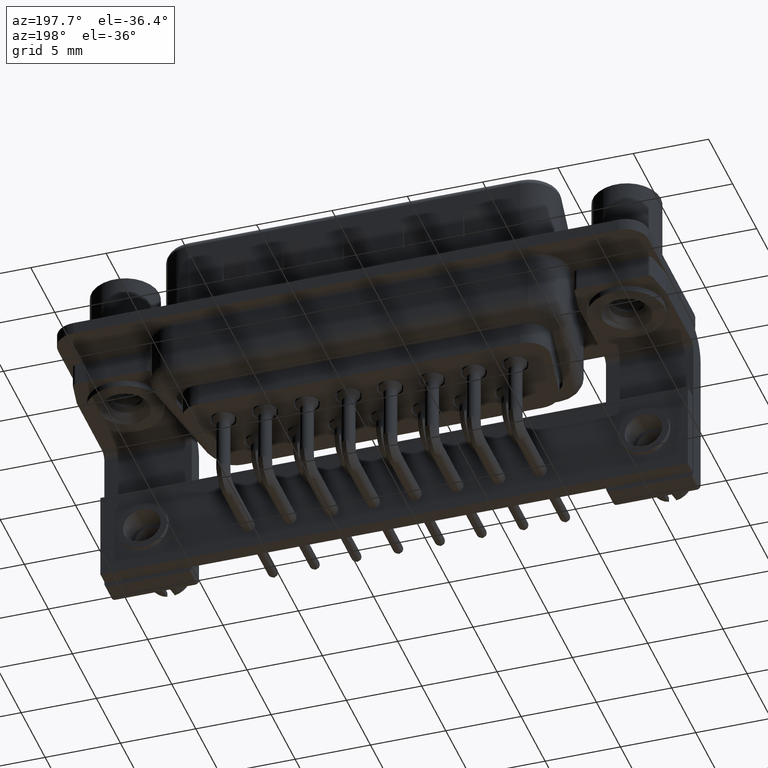
[diagram: clean part render]
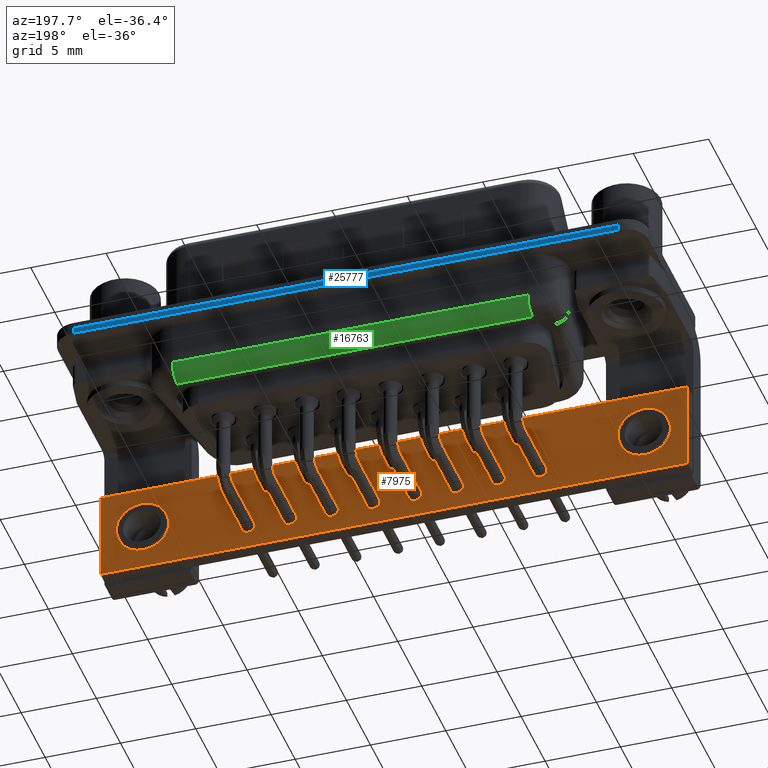
[diagram: same view with three faces highlighted in distinct colors, each labeled with its STEP entity id]
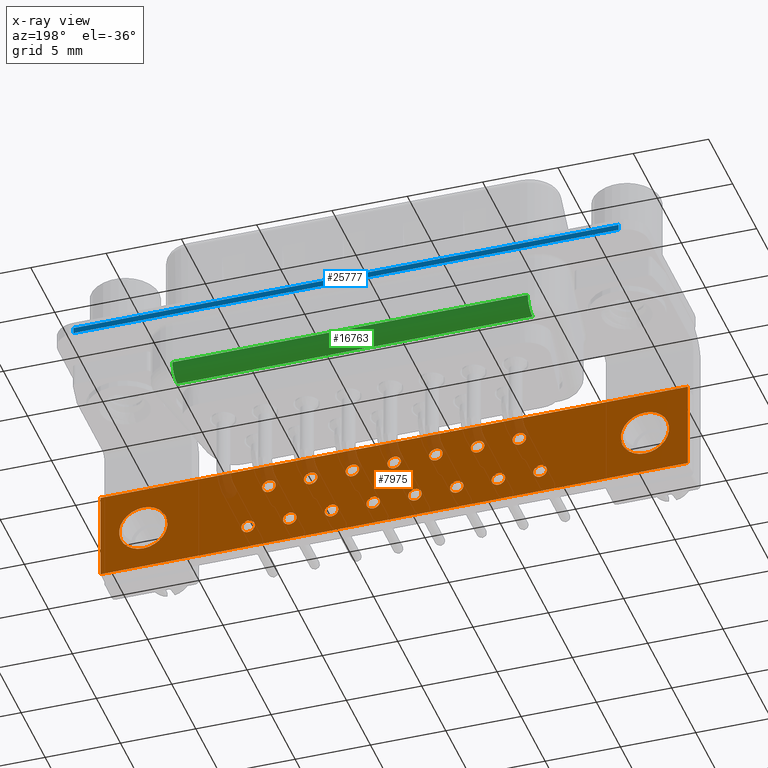
[diagram: x-ray of the same camera — body ghosted, the three highlighted faces saturated]
A machine part, auxiliary view with three faces highlighted in distinct colors.
The next image is the same camera in x-ray (body ghosted, the three faces saturated) — at least one of them is partly hidden behind the body in this view.
Their STEP definitions:

[orange] entity #7975 — the highlighted planar face has unit normal (0, 1, 0).
#178 = EDGE_LOOP ( 'NONE', ( #9738, #24924 ) ) ;
#271 = DIRECTION ( 'NONE',  ( 0.0000000000000000000, 1.000000000000000000, 0.0000000000000000000 ) ) ;
#274 = FACE_BOUND ( 'NONE', #26998, .T. ) ;
#504 = EDGE_CURVE ( 'NONE', #26231, #23463, #23858, .T. ) ;
#674 = AXIS2_PLACEMENT_3D ( 'NONE', #23411, #11066, #25603 ) ;
#748 = ORIENTED_EDGE ( 'NONE', *, *, #24466, .F. ) ;
#814 = CARTESIAN_POINT ( 'NONE',  ( 23.57499999999999900, -3.750000000000000000, -10.88999999999999900 ) ) ;
#839 = EDGE_CURVE ( 'NONE', #7379, #7822, #10579, .T. ) ;
#880 = EDGE_CURVE ( 'NONE', #11857, #13253, #4310, .T. ) ;
#967 = CARTESIAN_POINT ( 'NONE',  ( -2.849999999999998300, -3.750000000000000000, -6.009999999999998000 ) ) ;
#970 = FACE_BOUND ( 'NONE', #24442, .T. ) ;
#1104 = DIRECTION ( 'NONE',  ( 0.0000000000000000000, 0.0000000000000000000, 1.000000000000000000 ) ) ;
#1266 = CARTESIAN_POINT ( 'NONE',  ( 6.954999999999997400, -3.750000000000000000, -10.89000000000000100 ) ) ;
#1270 = EDGE_CURVE ( 'NONE', #18652, #22926, #19556, .T. ) ;
#1272 = AXIS2_PLACEMENT_3D ( 'NONE', #6821, #21220, #8908 ) ;
#1612 = VERTEX_POINT ( 'NONE', #21558 ) ;
#1627 = ORIENTED_EDGE ( 'NONE', *, *, #24543, .F. ) ;
#1646 = CARTESIAN_POINT ( 'NONE',  ( 20.80499999999999600, -3.750000000000000000, -10.44000000000000000 ) ) ;
#1672 = FACE_BOUND ( 'NONE', #20735, .T. ) ;
#1793 = ORIENTED_EDGE ( 'NONE', *, *, #839, .F. ) ;
#1857 = ORIENTED_EDGE ( 'NONE', *, *, #18860, .F. ) ;
#1912 = VERTEX_POINT ( 'NONE', #18668 ) ;
#1935 = CARTESIAN_POINT ( 'NONE',  ( 18.03499999999999700, -3.750000000000000000, -9.990000000000000200 ) ) ;
#1984 = DIRECTION ( 'NONE',  ( 0.0000000000000000000, 0.0000000000000000000, 1.000000000000000000 ) ) ;
#2025 = CARTESIAN_POINT ( 'NONE',  ( 22.18999999999999400, -3.750000000000000000, -7.599999999999999600 ) ) ;
#2490 = ORIENTED_EDGE ( 'NONE', *, *, #13821, .F. ) ;
#2599 = CARTESIAN_POINT ( 'NONE',  ( 15.26499999999999700, -3.750000000000000000, -9.990000000000003800 ) ) ;
#2651 = CARTESIAN_POINT ( 'NONE',  ( 9.724999999999997900, -3.750000000000000000, -9.989999999999998400 ) ) ;
#2847 = AXIS2_PLACEMENT_3D ( 'NONE', #21670, #9340, #23811 ) ;
#3166 = VECTOR ( 'NONE', #24045, 1000.000000000000000 ) ;
#3174 = EDGE_CURVE ( 'NONE', #7688, #4553, #6195, .T. ) ;
#3259 = CARTESIAN_POINT ( 'NONE',  ( 11.10999999999999600, -3.750000000000000000, -7.599999999999999600 ) ) ;
#3295 = DIRECTION ( 'NONE',  ( 1.000000000000000000, -0.0000000000000000000, -1.334402673828313300E-016 ) ) ;
#3342 = EDGE_LOOP ( 'NONE', ( #22434, #12695, #12681, #16418 ) ) ;
#3350 = EDGE_CURVE ( 'NONE', #11941, #23934, #8481, .T. ) ;
#3422 = CARTESIAN_POINT ( 'NONE',  ( 11.10999999999999600, -3.750000000000000000, -8.050000000000000700 ) ) ;
#3518 = AXIS2_PLACEMENT_3D ( 'NONE', #19420, #7108, #21512 ) ;
#3585 = EDGE_CURVE ( 'NONE', #4453, #23754, #19719, .T. ) ;
#3647 = VECTOR ( 'NONE', #3295, 1000.000000000000000 ) ;
#3721 = PLANE ( 'NONE',  #23971 ) ;
#3727 = CARTESIAN_POINT ( 'NONE',  ( 36.14999999999999100, -3.750000000000000000, -6.010000000000003300 ) ) ;
#3729 = CIRCLE ( 'NONE', #2847, 0.4499999999999999000 ) ;
#3746 = EDGE_CURVE ( 'NONE', #13253, #1612, #15210, .T. ) ;
#3772 = DIRECTION ( 'NONE',  ( 0.0000000000000000000, 0.0000000000000000000, 1.000000000000000000 ) ) ;
#3856 = AXIS2_PLACEMENT_3D ( 'NONE', #6024, #20458, #8153 ) ;
#3933 = CIRCLE ( 'NONE', #18003, 0.4500000000000007300 ) ;
#3937 = DIRECTION ( 'NONE',  ( -0.0000000000000000000, -0.0000000000000000000, 1.000000000000000000 ) ) ;
#3996 = AXIS2_PLACEMENT_3D ( 'NONE', #21055, #17081, #21845 ) ;
#4144 = DIRECTION ( 'NONE',  ( 0.0000000000000000000, 0.0000000000000000000, 1.000000000000000000 ) ) ;
#4152 = VECTOR ( 'NONE', #14774, 1000.000000000000000 ) ;
#4157 = ORIENTED_EDGE ( 'NONE', *, *, #13046, .F. ) ;
#4205 = EDGE_CURVE ( 'NONE', #6959, #1912, #12971, .T. ) ;
#4269 = ORIENTED_EDGE ( 'NONE', *, *, #8256, .F. ) ;
#4310 = LINE ( 'NONE', #3727, #3647 ) ;
#4323 = CIRCLE ( 'NONE', #3518, 0.4499999999999955100 ) ;
#4453 = VERTEX_POINT ( 'NONE', #1935 ) ;
#4479 = VERTEX_POINT ( 'NONE', #19405 ) ;
#4530 = CARTESIAN_POINT ( 'NONE',  ( 26.34499999999999200, -3.750000000000000000, -10.89000000000000200 ) ) ;
#4553 = VERTEX_POINT ( 'NONE', #24674 ) ;
#4637 = DIRECTION ( 'NONE',  ( 0.0000000000000000000, 1.000000000000000000, 0.0000000000000000000 ) ) ;
#4695 = DIRECTION ( 'NONE',  ( 0.0000000000000000000, 0.0000000000000000000, 1.000000000000000000 ) ) ;
#4730 = EDGE_LOOP ( 'NONE', ( #17868, #6319 ) ) ;
#4794 = DIRECTION ( 'NONE',  ( 0.0000000000000000000, 1.000000000000000000, 0.0000000000000000000 ) ) ;
#4834 = CARTESIAN_POINT ( 'NONE',  ( 18.03499999999999700, -3.750000000000000000, -10.44000000000000000 ) ) ;
#4875 = AXIS2_PLACEMENT_3D ( 'NONE', #22052, #9698, #24191 ) ;
#4999 = CARTESIAN_POINT ( 'NONE',  ( 8.339999999999996300, -3.750000000000000000, -7.599999999999999600 ) ) ;
#5020 = EDGE_CURVE ( 'NONE', #4553, #7688, #16743, .T. ) ;
#5310 = CIRCLE ( 'NONE', #21395, 0.4499999999999981200 ) ;
#5385 = DIRECTION ( 'NONE',  ( 0.0000000000000000000, 0.0000000000000000000, 1.000000000000000000 ) ) ;
#5508 = ORIENTED_EDGE ( 'NONE', *, *, #10279, .F. ) ;
#5578 = VERTEX_POINT ( 'NONE', #17425 ) ;
#5629 = CARTESIAN_POINT ( 'NONE',  ( 23.57499999999999900, -3.750000000000000000, -10.44000000000000000 ) ) ;
#5710 = EDGE_CURVE ( 'NONE', #10811, #11857, #19976, .T. ) ;
#5873 = CARTESIAN_POINT ( 'NONE',  ( 0.0000000000000000000, -3.750000000000000000, 0.0000000000000000000 ) ) ;
#5981 = FACE_BOUND ( 'NONE', #16492, .T. ) ;
#6024 = CARTESIAN_POINT ( 'NONE',  ( 20.80499999999999600, -3.750000000000000000, -10.44000000000000000 ) ) ;
#6148 = DIRECTION ( 'NONE',  ( 0.0000000000000000000, 1.000000000000000000, 0.0000000000000000000 ) ) ;
#6160 = EDGE_LOOP ( 'NONE', ( #9667, #1627 ) ) ;
#6195 = CIRCLE ( 'NONE', #3996, 0.4499999999999981200 ) ;
#6236 = ORIENTED_EDGE ( 'NONE', *, *, #17805, .F. ) ;
#6247 = EDGE_CURVE ( 'NONE', #4479, #21849, #13865, .T. ) ;
#6319 = ORIENTED_EDGE ( 'NONE', *, *, #20411, .F. ) ;
#6337 = EDGE_CURVE ( 'NONE', #13427, #17304, #6407, .T. ) ;
#6407 = CIRCLE ( 'NONE', #7618, 0.4500000000000025100 ) ;
#6496 = EDGE_CURVE ( 'NONE', #18565, #8071, #3729, .T. ) ;
#6544 = DIRECTION ( 'NONE',  ( 0.0000000000000000000, 1.000000000000000000, 0.0000000000000000000 ) ) ;
#6606 = CIRCLE ( 'NONE', #1272, 1.600000000000000800 ) ;
#6653 = FACE_OUTER_BOUND ( 'NONE', #3342, .T. ) ;
#6659 = AXIS2_PLACEMENT_3D ( 'NONE', #19720, #7389, #21820 ) ;
#6764 = AXIS2_PLACEMENT_3D ( 'NONE', #26711, #26430, #25091 ) ;
#6798 = CARTESIAN_POINT ( 'NONE',  ( 0.0000000000000000000, -3.750000000000000000, -10.60999999999999400 ) ) ;
#6821 = CARTESIAN_POINT ( 'NONE',  ( 0.0000000000000000000, -3.750000000000000000, -9.009999999999994500 ) ) ;
#6931 = CARTESIAN_POINT ( 'NONE',  ( 12.49499999999999700, -3.750000000000000000, -10.89000000000000100 ) ) ;
#6948 = ORIENTED_EDGE ( 'NONE', *, *, #14273, .F. ) ;
#6959 = VERTEX_POINT ( 'NONE', #10686 ) ;
#7061 = VERTEX_POINT ( 'NONE', #2599 ) ;
#7108 = DIRECTION ( 'NONE',  ( 0.0000000000000000000, 1.000000000000000000, 0.0000000000000000000 ) ) ;
#7119 = DIRECTION ( 'NONE',  ( 0.0000000000000000000, 1.000000000000000000, 0.0000000000000000000 ) ) ;
#7127 = DIRECTION ( 'NONE',  ( 0.0000000000000000000, 0.0000000000000000000, 1.000000000000000000 ) ) ;
#7242 = CARTESIAN_POINT ( 'NONE',  ( 19.41999999999999500, -3.750000000000000000, -7.150000000000002100 ) ) ;
#7379 = VERTEX_POINT ( 'NONE', #24625 ) ;
#7389 = DIRECTION ( 'NONE',  ( 0.0000000000000000000, 1.000000000000000000, 0.0000000000000000000 ) ) ;
#7618 = AXIS2_PLACEMENT_3D ( 'NONE', #8621, #23068, #10720 ) ;
#7688 = VERTEX_POINT ( 'NONE', #25561 ) ;
#7751 = DIRECTION ( 'NONE',  ( 0.0000000000000000000, 0.0000000000000000000, 1.000000000000000000 ) ) ;
#7822 = VERTEX_POINT ( 'NONE', #11456 ) ;
#7975 = ADVANCED_FACE ( 'NONE', ( #18242, #23834, #12827, #18886, #1672, #23144, #17596, #12187, #6653, #970, #22495, #16959, #11538, #5981, #274, #21823, #16310, #10893 ), #3721, .T. ) ;
#8059 = EDGE_CURVE ( 'NONE', #25848, #24103, #9583, .T. ) ;
#8071 = VERTEX_POINT ( 'NONE', #24784 ) ;
#8091 = EDGE_LOOP ( 'NONE', ( #748, #26207 ) ) ;
#8153 = DIRECTION ( 'NONE',  ( 0.0000000000000000000, 0.0000000000000000000, 1.000000000000000000 ) ) ;
#8176 = ORIENTED_EDGE ( 'NONE', *, *, #25348, .F. ) ;
#8185 = AXIS2_PLACEMENT_3D ( 'NONE', #11122, #25672, #13169 ) ;
#8256 = EDGE_CURVE ( 'NONE', #23754, #4453, #22152, .T. ) ;
#8443 = EDGE_LOOP ( 'NONE', ( #17196, #6948 ) ) ;
#8481 = CIRCLE ( 'NONE', #19261, 0.4500000000000007300 ) ;
#8620 = AXIS2_PLACEMENT_3D ( 'NONE', #3259, #17759, #5385 ) ;
#8621 = CARTESIAN_POINT ( 'NONE',  ( 26.34499999999999200, -3.750000000000000000, -10.44000000000000000 ) ) ;
#8725 = ORIENTED_EDGE ( 'NONE', *, *, #504, .F. ) ;
#8846 = CIRCLE ( 'NONE', #24390, 0.4499999999999972900 ) ;
#8886 = EDGE_CURVE ( 'NONE', #17304, #13427, #13412, .T. ) ;
#8908 = DIRECTION ( 'NONE',  ( 0.0000000000000000000, 0.0000000000000000000, 1.000000000000000000 ) ) ;
#8977 = AXIS2_PLACEMENT_3D ( 'NONE', #4999, #19436, #7127 ) ;
#9063 = VECTOR ( 'NONE', #3937, 1000.000000000000000 ) ;
#9170 = CIRCLE ( 'NONE', #4875, 0.4500000000000007300 ) ;
#9283 = CARTESIAN_POINT ( 'NONE',  ( 8.339999999999996300, -3.750000000000000000, -8.050000000000000700 ) ) ;
#9340 = DIRECTION ( 'NONE',  ( 0.0000000000000000000, 1.000000000000000000, 0.0000000000000000000 ) ) ;
#9380 = DIRECTION ( 'NONE',  ( 0.0000000000000000000, 1.000000000000000000, 0.0000000000000000000 ) ) ;
#9583 = CIRCLE ( 'NONE', #25428, 0.4500000000000016200 ) ;
#9599 = ORIENTED_EDGE ( 'NONE', *, *, #4205, .F. ) ;
#9667 = ORIENTED_EDGE ( 'NONE', *, *, #21726, .F. ) ;
#9698 = DIRECTION ( 'NONE',  ( 0.0000000000000000000, 1.000000000000000000, 0.0000000000000000000 ) ) ;
#9715 = AXIS2_PLACEMENT_3D ( 'NONE', #15358, #12567, #26158 ) ;
#9738 = ORIENTED_EDGE ( 'NONE', *, *, #9847, .F. ) ;
#9744 = VERTEX_POINT ( 'NONE', #7242 ) ;
#9847 = EDGE_CURVE ( 'NONE', #22926, #18652, #9170, .T. ) ;
#10171 = CARTESIAN_POINT ( 'NONE',  ( 20.80499999999999600, -3.750000000000000000, -10.88999999999999900 ) ) ;
#10247 = VERTEX_POINT ( 'NONE', #19092 ) ;
#10279 = EDGE_CURVE ( 'NONE', #23934, #11941, #26923, .T. ) ;
#10286 = CARTESIAN_POINT ( 'NONE',  ( -2.849999999999998300, -3.750000000000000000, -6.009999999999998000 ) ) ;
#10449 = EDGE_CURVE ( 'NONE', #7822, #7379, #14474, .T. ) ;
#10546 = CARTESIAN_POINT ( 'NONE',  ( 1.959434878635766000E-016, -3.750000000000000000, -7.409999999999993000 ) ) ;
#10579 = CIRCLE ( 'NONE', #16063, 1.600000000000005000 ) ;
#10686 = CARTESIAN_POINT ( 'NONE',  ( 16.64999999999999900, -3.750000000000000000, -8.049999999999998900 ) ) ;
#10720 = DIRECTION ( 'NONE',  ( 0.0000000000000000000, 0.0000000000000000000, 1.000000000000000000 ) ) ;
#10811 = VERTEX_POINT ( 'NONE', #27234 ) ;
#10893 = FACE_BOUND ( 'NONE', #8443, .T. ) ;
#10937 = CARTESIAN_POINT ( 'NONE',  ( 19.41999999999999500, -3.750000000000000000, -7.599999999999999600 ) ) ;
#11063 = CARTESIAN_POINT ( 'NONE',  ( 6.954999999999997400, -3.750000000000000000, -10.44000000000000000 ) ) ;
#11066 = DIRECTION ( 'NONE',  ( 0.0000000000000000000, 1.000000000000000000, 0.0000000000000000000 ) ) ;
#11122 = CARTESIAN_POINT ( 'NONE',  ( 15.26499999999999700, -3.750000000000000000, -10.44000000000000000 ) ) ;
#11287 = VERTEX_POINT ( 'NONE', #10171 ) ;
#11387 = ORIENTED_EDGE ( 'NONE', *, *, #17566, .F. ) ;
#11449 = CARTESIAN_POINT ( 'NONE',  ( 9.724999999999997900, -3.750000000000000000, -10.44000000000000000 ) ) ;
#11450 = AXIS2_PLACEMENT_3D ( 'NONE', #21708, #9380, #23851 ) ;
#11456 = CARTESIAN_POINT ( 'NONE',  ( 33.29999999999999700, -3.750000000000000000, -7.409999999999995700 ) ) ;
#11491 = DIRECTION ( 'NONE',  ( 0.0000000000000000000, 1.000000000000000000, 0.0000000000000000000 ) ) ;
#11519 = DIRECTION ( 'NONE',  ( 0.0000000000000000000, 0.0000000000000000000, 1.000000000000000000 ) ) ;
#11538 = FACE_BOUND ( 'NONE', #178, .T. ) ;
#11607 = AXIS2_PLACEMENT_3D ( 'NONE', #5629, #20073, #7751 ) ;
#11857 = VERTEX_POINT ( 'NONE', #967 ) ;
#11941 = VERTEX_POINT ( 'NONE', #1266 ) ;
#12015 = DIRECTION ( 'NONE',  ( 0.0000000000000000000, 1.000000000000000000, 0.0000000000000000000 ) ) ;
#12064 = CARTESIAN_POINT ( 'NONE',  ( 24.95999999999999700, -3.750000000000000000, -7.149999999999998600 ) ) ;
#12178 = CARTESIAN_POINT ( 'NONE',  ( 13.87999999999999700, -3.750000000000000000, -7.599999999999999600 ) ) ;
#12187 = FACE_BOUND ( 'NONE', #19333, .T. ) ;
#12439 = CIRCLE ( 'NONE', #15341, 0.4499999999999981200 ) ;
#12476 = AXIS2_PLACEMENT_3D ( 'NONE', #1646, #16206, #3772 ) ;
#12567 = DIRECTION ( 'NONE',  ( 0.0000000000000000000, 1.000000000000000000, 0.0000000000000000000 ) ) ;
#12636 = VERTEX_POINT ( 'NONE', #20581 ) ;
#12681 = ORIENTED_EDGE ( 'NONE', *, *, #3746, .T. ) ;
#12695 = ORIENTED_EDGE ( 'NONE', *, *, #880, .T. ) ;
#12827 = FACE_BOUND ( 'NONE', #20596, .T. ) ;
#12901 = CARTESIAN_POINT ( 'NONE',  ( 26.34499999999999200, -3.750000000000000000, -10.44000000000000000 ) ) ;
#12971 = CIRCLE ( 'NONE', #24803, 0.4499999999999981200 ) ;
#13005 = DIRECTION ( 'NONE',  ( 0.0000000000000000000, 0.0000000000000000000, 1.000000000000000000 ) ) ;
#13046 = EDGE_CURVE ( 'NONE', #1912, #6959, #12439, .T. ) ;
#13106 = DIRECTION ( 'NONE',  ( 0.0000000000000000000, 0.0000000000000000000, 1.000000000000000000 ) ) ;
#13121 = AXIS2_PLACEMENT_3D ( 'NONE', #10937, #25484, #13005 ) ;
#13169 = DIRECTION ( 'NONE',  ( 0.0000000000000000000, 0.0000000000000000000, 1.000000000000000000 ) ) ;
#13253 = VERTEX_POINT ( 'NONE', #14297 ) ;
#13412 = CIRCLE ( 'NONE', #18168, 0.4500000000000025100 ) ;
#13427 = VERTEX_POINT ( 'NONE', #4530 ) ;
#13503 = DIRECTION ( 'NONE',  ( 0.0000000000000000000, 0.0000000000000000000, 1.000000000000000000 ) ) ;
#13647 = ORIENTED_EDGE ( 'NONE', *, *, #22973, .F. ) ;
#13672 = DIRECTION ( 'NONE',  ( 0.0000000000000000000, 1.000000000000000000, 0.0000000000000000000 ) ) ;
#13756 = CARTESIAN_POINT ( 'NONE',  ( 18.03499999999999700, -3.750000000000000000, -10.88999999999999900 ) ) ;
#13821 = EDGE_CURVE ( 'NONE', #11287, #27035, #15570, .T. ) ;
#13865 = CIRCLE ( 'NONE', #17772, 0.4499999999999999000 ) ;
#13892 = CIRCLE ( 'NONE', #8185, 0.4499999999999955100 ) ;
#14273 = EDGE_CURVE ( 'NONE', #24103, #25848, #24389, .T. ) ;
#14297 = CARTESIAN_POINT ( 'NONE',  ( 36.14999999999999100, -3.750000000000000000, -6.010000000000003300 ) ) ;
#14359 = CARTESIAN_POINT ( 'NONE',  ( 19.41999999999999500, -3.750000000000000000, -8.049999999999998900 ) ) ;
#14474 = CIRCLE ( 'NONE', #6659, 1.600000000000005000 ) ;
#14479 = DIRECTION ( 'NONE',  ( 0.0000000000000000000, 1.000000000000000000, 0.0000000000000000000 ) ) ;
#14774 = DIRECTION ( 'NONE',  ( 0.0000000000000000000, 0.0000000000000000000, -1.000000000000000000 ) ) ;
#14863 = CARTESIAN_POINT ( 'NONE',  ( 36.14999999999999100, -3.750000000000000000, -6.010000000000003300 ) ) ;
#14902 = EDGE_CURVE ( 'NONE', #1612, #10811, #21008, .T. ) ;
#14938 = DIRECTION ( 'NONE',  ( 0.0000000000000000000, 0.0000000000000000000, 1.000000000000000000 ) ) ;
#14960 = EDGE_LOOP ( 'NONE', ( #18360, #5508 ) ) ;
#15149 = EDGE_LOOP ( 'NONE', ( #17205, #18386 ) ) ;
#15210 = LINE ( 'NONE', #14863, #4152 ) ;
#15341 = AXIS2_PLACEMENT_3D ( 'NONE', #26184, #13672, #1104 ) ;
#15358 = CARTESIAN_POINT ( 'NONE',  ( 0.0000000000000000000, -3.750000000000000000, -9.009999999999994500 ) ) ;
#15441 = CARTESIAN_POINT ( 'NONE',  ( 9.724999999999997900, -3.750000000000000000, -10.89000000000000100 ) ) ;
#15570 = CIRCLE ( 'NONE', #12476, 0.4499999999999972900 ) ;
#15645 = AXIS2_PLACEMENT_3D ( 'NONE', #2025, #16574, #4144 ) ;
#15711 = EDGE_LOOP ( 'NONE', ( #8176, #1857 ) ) ;
#15727 = CARTESIAN_POINT ( 'NONE',  ( 36.14999999999999100, -3.750000000000000000, -12.01000000000000300 ) ) ;
#15824 = EDGE_CURVE ( 'NONE', #16058, #12636, #22003, .T. ) ;
#16058 = VERTEX_POINT ( 'NONE', #20082 ) ;
#16063 = AXIS2_PLACEMENT_3D ( 'NONE', #23945, #25926, #22715 ) ;
#16206 = DIRECTION ( 'NONE',  ( 0.0000000000000000000, 1.000000000000000000, 0.0000000000000000000 ) ) ;
#16310 = FACE_BOUND ( 'NONE', #6160, .T. ) ;
#16418 = ORIENTED_EDGE ( 'NONE', *, *, #14902, .T. ) ;
#16433 = EDGE_CURVE ( 'NONE', #7061, #5578, #13892, .T. ) ;
#16492 = EDGE_LOOP ( 'NONE', ( #4269, #25960 ) ) ;
#16574 = DIRECTION ( 'NONE',  ( 0.0000000000000000000, 1.000000000000000000, 0.0000000000000000000 ) ) ;
#16743 = CIRCLE ( 'NONE', #26085, 0.4499999999999981200 ) ;
#16959 = FACE_BOUND ( 'NONE', #25186, .T. ) ;
#17046 = CARTESIAN_POINT ( 'NONE',  ( 18.03499999999999700, -3.750000000000000000, -10.44000000000000000 ) ) ;
#17081 = DIRECTION ( 'NONE',  ( 0.0000000000000000000, 1.000000000000000000, 0.0000000000000000000 ) ) ;
#17152 = AXIS2_PLACEMENT_3D ( 'NONE', #18861, #6544, #20958 ) ;
#17196 = ORIENTED_EDGE ( 'NONE', *, *, #8059, .F. ) ;
#17205 = ORIENTED_EDGE ( 'NONE', *, *, #6496, .F. ) ;
#17304 = VERTEX_POINT ( 'NONE', #17978 ) ;
#17425 = CARTESIAN_POINT ( 'NONE',  ( 15.26499999999999700, -3.750000000000000000, -10.88999999999999500 ) ) ;
#17560 = CIRCLE ( 'NONE', #3856, 0.4499999999999972900 ) ;
#17566 = EDGE_CURVE ( 'NONE', #22175, #19474, #19483, .T. ) ;
#17591 = CIRCLE ( 'NONE', #8977, 0.4499999999999999000 ) ;
#17596 = FACE_BOUND ( 'NONE', #8091, .T. ) ;
#17641 = EDGE_CURVE ( 'NONE', #23463, #26231, #6606, .T. ) ;
#17644 = EDGE_LOOP ( 'NONE', ( #25418, #19036 ) ) ;
#17759 = DIRECTION ( 'NONE',  ( 0.0000000000000000000, 1.000000000000000000, 0.0000000000000000000 ) ) ;
#17772 = AXIS2_PLACEMENT_3D ( 'NONE', #27031, #14479, #1984 ) ;
#17805 = EDGE_CURVE ( 'NONE', #19474, #22175, #3933, .T. ) ;
#17868 = ORIENTED_EDGE ( 'NONE', *, *, #15824, .F. ) ;
#17896 = CIRCLE ( 'NONE', #8620, 0.4499999999999999000 ) ;
#17978 = CARTESIAN_POINT ( 'NONE',  ( 26.34499999999999200, -3.750000000000000000, -9.989999999999996700 ) ) ;
#18003 = AXIS2_PLACEMENT_3D ( 'NONE', #11449, #26014, #13503 ) ;
#18168 = AXIS2_PLACEMENT_3D ( 'NONE', #12901, #271, #14938 ) ;
#18185 = CARTESIAN_POINT ( 'NONE',  ( 12.49499999999999700, -3.750000000000000000, -9.989999999999998400 ) ) ;
#18242 = FACE_BOUND ( 'NONE', #4730, .T. ) ;
#18360 = ORIENTED_EDGE ( 'NONE', *, *, #3350, .F. ) ;
#18386 = ORIENTED_EDGE ( 'NONE', *, *, #23965, .F. ) ;
#18495 = CARTESIAN_POINT ( 'NONE',  ( 24.95999999999999700, -3.750000000000000000, -7.599999999999999600 ) ) ;
#18565 = VERTEX_POINT ( 'NONE', #3422 ) ;
#18566 = DIRECTION ( 'NONE',  ( 0.0000000000000000000, 0.0000000000000000000, 1.000000000000000000 ) ) ;
#18652 = VERTEX_POINT ( 'NONE', #18185 ) ;
#18668 = CARTESIAN_POINT ( 'NONE',  ( 16.64999999999999900, -3.750000000000000000, -7.150000000000002100 ) ) ;
#18811 = ORIENTED_EDGE ( 'NONE', *, *, #5020, .F. ) ;
#18860 = EDGE_CURVE ( 'NONE', #10247, #26326, #8846, .T. ) ;
#18861 = CARTESIAN_POINT ( 'NONE',  ( 9.724999999999997900, -3.750000000000000000, -10.44000000000000000 ) ) ;
#18886 = FACE_BOUND ( 'NONE', #15149, .T. ) ;
#19036 = ORIENTED_EDGE ( 'NONE', *, *, #8886, .F. ) ;
#19092 = CARTESIAN_POINT ( 'NONE',  ( 23.57499999999999900, -3.750000000000000000, -9.990000000000000200 ) ) ;
#19114 = DIRECTION ( 'NONE',  ( 0.0000000000000000000, 0.0000000000000000000, 1.000000000000000000 ) ) ;
#19261 = AXIS2_PLACEMENT_3D ( 'NONE', #25989, #25813, #18566 ) ;
#19333 = EDGE_LOOP ( 'NONE', ( #1793, #22072 ) ) ;
#19392 = CARTESIAN_POINT ( 'NONE',  ( 20.80499999999999600, -3.750000000000000000, -9.990000000000000200 ) ) ;
#19405 = CARTESIAN_POINT ( 'NONE',  ( 8.339999999999996300, -3.750000000000000000, -7.150000000000000400 ) ) ;
#19420 = CARTESIAN_POINT ( 'NONE',  ( 15.26499999999999700, -3.750000000000000000, -10.44000000000000000 ) ) ;
#19429 = CARTESIAN_POINT ( 'NONE',  ( 23.57499999999999900, -3.750000000000000000, -10.44000000000000000 ) ) ;
#19436 = DIRECTION ( 'NONE',  ( 0.0000000000000000000, 1.000000000000000000, 0.0000000000000000000 ) ) ;
#19474 = VERTEX_POINT ( 'NONE', #2651 ) ;
#19483 = CIRCLE ( 'NONE', #17152, 0.4500000000000007300 ) ;
#19556 = CIRCLE ( 'NONE', #6764, 0.4500000000000007300 ) ;
#19719 = CIRCLE ( 'NONE', #20138, 0.4499999999999972900 ) ;
#19720 = CARTESIAN_POINT ( 'NONE',  ( 33.29999999999999700, -3.750000000000000000, -9.009999999999999800 ) ) ;
#19976 = LINE ( 'NONE', #10286, #9063 ) ;
#20006 = CARTESIAN_POINT ( 'NONE',  ( 24.95999999999999700, -3.750000000000000000, -8.050000000000000700 ) ) ;
#20073 = DIRECTION ( 'NONE',  ( 0.0000000000000000000, 1.000000000000000000, 0.0000000000000000000 ) ) ;
#20082 = CARTESIAN_POINT ( 'NONE',  ( 22.18999999999999400, -3.750000000000000000, -8.050000000000000700 ) ) ;
#20138 = AXIS2_PLACEMENT_3D ( 'NONE', #4834, #4794, #4695 ) ;
#20411 = EDGE_CURVE ( 'NONE', #12636, #16058, #23301, .T. ) ;
#20458 = DIRECTION ( 'NONE',  ( 0.0000000000000000000, 1.000000000000000000, 0.0000000000000000000 ) ) ;
#20562 = DIRECTION ( 'NONE',  ( 0.0000000000000000000, 0.0000000000000000000, 1.000000000000000000 ) ) ;
#20581 = CARTESIAN_POINT ( 'NONE',  ( 22.18999999999999400, -3.750000000000000000, -7.149999999999998600 ) ) ;
#20596 = EDGE_LOOP ( 'NONE', ( #9599, #4157 ) ) ;
#20710 = ORIENTED_EDGE ( 'NONE', *, *, #24168, .F. ) ;
#20735 = EDGE_LOOP ( 'NONE', ( #13647, #23263 ) ) ;
#20958 = DIRECTION ( 'NONE',  ( 0.0000000000000000000, 0.0000000000000000000, 1.000000000000000000 ) ) ;
#20999 = AXIS2_PLACEMENT_3D ( 'NONE', #11063, #25598, #13106 ) ;
#21008 = LINE ( 'NONE', #15727, #3166 ) ;
#21055 = CARTESIAN_POINT ( 'NONE',  ( 13.87999999999999700, -3.750000000000000000, -7.599999999999999600 ) ) ;
#21220 = DIRECTION ( 'NONE',  ( 0.0000000000000000000, 1.000000000000000000, 0.0000000000000000000 ) ) ;
#21395 = AXIS2_PLACEMENT_3D ( 'NONE', #23876, #11491, #26059 ) ;
#21512 = DIRECTION ( 'NONE',  ( 0.0000000000000000000, 0.0000000000000000000, 1.000000000000000000 ) ) ;
#21525 = DIRECTION ( 'NONE',  ( 0.0000000000000000000, 0.0000000000000000000, 1.000000000000000000 ) ) ;
#21558 = CARTESIAN_POINT ( 'NONE',  ( 36.14999999999999100, -3.750000000000000000, -12.01000000000000300 ) ) ;
#21670 = CARTESIAN_POINT ( 'NONE',  ( 11.10999999999999600, -3.750000000000000000, -7.599999999999999600 ) ) ;
#21708 = CARTESIAN_POINT ( 'NONE',  ( 24.95999999999999700, -3.750000000000000000, -7.599999999999999600 ) ) ;
#21726 = EDGE_CURVE ( 'NONE', #22675, #9744, #24263, .T. ) ;
#21820 = DIRECTION ( 'NONE',  ( 0.0000000000000000000, 0.0000000000000000000, 1.000000000000000000 ) ) ;
#21823 = FACE_BOUND ( 'NONE', #15711, .T. ) ;
#21845 = DIRECTION ( 'NONE',  ( 0.0000000000000000000, 0.0000000000000000000, 1.000000000000000000 ) ) ;
#21849 = VERTEX_POINT ( 'NONE', #9283 ) ;
#21892 = DIRECTION ( 'NONE',  ( 0.0000000000000000000, 0.0000000000000000000, 1.000000000000000000 ) ) ;
#21930 = DIRECTION ( 'NONE',  ( 0.0000000000000000000, 1.000000000000000000, 0.0000000000000000000 ) ) ;
#21949 = CARTESIAN_POINT ( 'NONE',  ( 16.64999999999999900, -3.750000000000000000, -7.599999999999999600 ) ) ;
#22003 = CIRCLE ( 'NONE', #674, 0.4500000000000016200 ) ;
#22052 = CARTESIAN_POINT ( 'NONE',  ( 12.49499999999999700, -3.750000000000000000, -10.44000000000000000 ) ) ;
#22072 = ORIENTED_EDGE ( 'NONE', *, *, #10449, .F. ) ;
#22152 = CIRCLE ( 'NONE', #26315, 0.4499999999999972900 ) ;
#22175 = VERTEX_POINT ( 'NONE', #15441 ) ;
#22309 = CIRCLE ( 'NONE', #11607, 0.4499999999999972900 ) ;
#22347 = DIRECTION ( 'NONE',  ( 0.0000000000000000000, 1.000000000000000000, 0.0000000000000000000 ) ) ;
#22433 = DIRECTION ( 'NONE',  ( 0.0000000000000000000, -0.0000000000000000000, 1.000000000000000000 ) ) ;
#22434 = ORIENTED_EDGE ( 'NONE', *, *, #5710, .T. ) ;
#22495 = FACE_BOUND ( 'NONE', #14960, .T. ) ;
#22675 = VERTEX_POINT ( 'NONE', #14359 ) ;
#22715 = DIRECTION ( 'NONE',  ( 0.0000000000000000000, 0.0000000000000000000, 1.000000000000000000 ) ) ;
#22926 = VERTEX_POINT ( 'NONE', #6931 ) ;
#22973 = EDGE_CURVE ( 'NONE', #5578, #7061, #4323, .T. ) ;
#23068 = DIRECTION ( 'NONE',  ( 0.0000000000000000000, 1.000000000000000000, 0.0000000000000000000 ) ) ;
#23144 = FACE_BOUND ( 'NONE', #24175, .T. ) ;
#23263 = ORIENTED_EDGE ( 'NONE', *, *, #16433, .F. ) ;
#23301 = CIRCLE ( 'NONE', #15645, 0.4500000000000016200 ) ;
#23411 = CARTESIAN_POINT ( 'NONE',  ( 22.18999999999999400, -3.750000000000000000, -7.599999999999999600 ) ) ;
#23463 = VERTEX_POINT ( 'NONE', #10546 ) ;
#23754 = VERTEX_POINT ( 'NONE', #13756 ) ;
#23811 = DIRECTION ( 'NONE',  ( 0.0000000000000000000, 0.0000000000000000000, 1.000000000000000000 ) ) ;
#23834 = FACE_BOUND ( 'NONE', #17644, .T. ) ;
#23851 = DIRECTION ( 'NONE',  ( 0.0000000000000000000, 0.0000000000000000000, 1.000000000000000000 ) ) ;
#23858 = CIRCLE ( 'NONE', #9715, 1.600000000000000800 ) ;
#23876 = CARTESIAN_POINT ( 'NONE',  ( 19.41999999999999500, -3.750000000000000000, -7.599999999999999600 ) ) ;
#23911 = CARTESIAN_POINT ( 'NONE',  ( 6.954999999999997400, -3.750000000000000000, -9.989999999999998400 ) ) ;
#23934 = VERTEX_POINT ( 'NONE', #23911 ) ;
#23945 = CARTESIAN_POINT ( 'NONE',  ( 33.29999999999999700, -3.750000000000000000, -9.009999999999999800 ) ) ;
#23965 = EDGE_CURVE ( 'NONE', #8071, #18565, #17896, .T. ) ;
#23971 = AXIS2_PLACEMENT_3D ( 'NONE', #5873, #22347, #22433 ) ;
#24045 = DIRECTION ( 'NONE',  ( -1.000000000000000000, 0.0000000000000000000, 1.334402673828313300E-016 ) ) ;
#24103 = VERTEX_POINT ( 'NONE', #12064 ) ;
#24168 = EDGE_CURVE ( 'NONE', #27035, #11287, #17560, .T. ) ;
#24175 = EDGE_LOOP ( 'NONE', ( #11387, #6236 ) ) ;
#24191 = DIRECTION ( 'NONE',  ( 0.0000000000000000000, 0.0000000000000000000, 1.000000000000000000 ) ) ;
#24263 = CIRCLE ( 'NONE', #13121, 0.4499999999999981200 ) ;
#24389 = CIRCLE ( 'NONE', #11450, 0.4500000000000016200 ) ;
#24390 = AXIS2_PLACEMENT_3D ( 'NONE', #19429, #7119, #21525 ) ;
#24396 = ORIENTED_EDGE ( 'NONE', *, *, #17641, .F. ) ;
#24442 = EDGE_LOOP ( 'NONE', ( #8725, #24396 ) ) ;
#24466 = EDGE_CURVE ( 'NONE', #21849, #4479, #17591, .T. ) ;
#24543 = EDGE_CURVE ( 'NONE', #9744, #22675, #5310, .T. ) ;
#24625 = CARTESIAN_POINT ( 'NONE',  ( 33.29999999999999700, -3.750000000000000000, -10.61000000000000500 ) ) ;
#24674 = CARTESIAN_POINT ( 'NONE',  ( 13.87999999999999700, -3.750000000000000000, -7.150000000000002100 ) ) ;
#24784 = CARTESIAN_POINT ( 'NONE',  ( 11.10999999999999600, -3.750000000000000000, -7.150000000000000400 ) ) ;
#24803 = AXIS2_PLACEMENT_3D ( 'NONE', #21949, #21930, #21892 ) ;
#24924 = ORIENTED_EDGE ( 'NONE', *, *, #1270, .F. ) ;
#25091 = DIRECTION ( 'NONE',  ( 0.0000000000000000000, 0.0000000000000000000, 1.000000000000000000 ) ) ;
#25186 = EDGE_LOOP ( 'NONE', ( #2490, #20710 ) ) ;
#25348 = EDGE_CURVE ( 'NONE', #26326, #10247, #22309, .T. ) ;
#25418 = ORIENTED_EDGE ( 'NONE', *, *, #6337, .F. ) ;
#25428 = AXIS2_PLACEMENT_3D ( 'NONE', #18495, #6148, #20562 ) ;
#25484 = DIRECTION ( 'NONE',  ( 0.0000000000000000000, 1.000000000000000000, 0.0000000000000000000 ) ) ;
#25561 = CARTESIAN_POINT ( 'NONE',  ( 13.87999999999999700, -3.750000000000000000, -8.049999999999998900 ) ) ;
#25598 = DIRECTION ( 'NONE',  ( 0.0000000000000000000, 1.000000000000000000, 0.0000000000000000000 ) ) ;
#25603 = DIRECTION ( 'NONE',  ( 0.0000000000000000000, 0.0000000000000000000, 1.000000000000000000 ) ) ;
#25672 = DIRECTION ( 'NONE',  ( 0.0000000000000000000, 1.000000000000000000, 0.0000000000000000000 ) ) ;
#25813 = DIRECTION ( 'NONE',  ( 0.0000000000000000000, 1.000000000000000000, 0.0000000000000000000 ) ) ;
#25848 = VERTEX_POINT ( 'NONE', #20006 ) ;
#25926 = DIRECTION ( 'NONE',  ( 0.0000000000000000000, 1.000000000000000000, 0.0000000000000000000 ) ) ;
#25960 = ORIENTED_EDGE ( 'NONE', *, *, #3585, .F. ) ;
#25989 = CARTESIAN_POINT ( 'NONE',  ( 6.954999999999997400, -3.750000000000000000, -10.44000000000000000 ) ) ;
#26014 = DIRECTION ( 'NONE',  ( 0.0000000000000000000, 1.000000000000000000, 0.0000000000000000000 ) ) ;
#26059 = DIRECTION ( 'NONE',  ( 0.0000000000000000000, 0.0000000000000000000, 1.000000000000000000 ) ) ;
#26085 = AXIS2_PLACEMENT_3D ( 'NONE', #12178, #12015, #11519 ) ;
#26158 = DIRECTION ( 'NONE',  ( 0.0000000000000000000, 0.0000000000000000000, 1.000000000000000000 ) ) ;
#26184 = CARTESIAN_POINT ( 'NONE',  ( 16.64999999999999900, -3.750000000000000000, -7.599999999999999600 ) ) ;
#26207 = ORIENTED_EDGE ( 'NONE', *, *, #6247, .F. ) ;
#26231 = VERTEX_POINT ( 'NONE', #6798 ) ;
#26315 = AXIS2_PLACEMENT_3D ( 'NONE', #17046, #4637, #19114 ) ;
#26326 = VERTEX_POINT ( 'NONE', #814 ) ;
#26430 = DIRECTION ( 'NONE',  ( 0.0000000000000000000, 1.000000000000000000, 0.0000000000000000000 ) ) ;
#26711 = CARTESIAN_POINT ( 'NONE',  ( 12.49499999999999700, -3.750000000000000000, -10.44000000000000000 ) ) ;
#26923 = CIRCLE ( 'NONE', #20999, 0.4500000000000007300 ) ;
#26998 = EDGE_LOOP ( 'NONE', ( #27136, #18811 ) ) ;
#27031 = CARTESIAN_POINT ( 'NONE',  ( 8.339999999999996300, -3.750000000000000000, -7.599999999999999600 ) ) ;
#27035 = VERTEX_POINT ( 'NONE', #19392 ) ;
#27136 = ORIENTED_EDGE ( 'NONE', *, *, #3174, .F. ) ;
#27234 = CARTESIAN_POINT ( 'NONE',  ( -2.849999999999998300, -3.750000000000000000, -12.00999999999999800 ) ) ;

[blue] entity #25777 — the highlighted planar face has unit normal (-0, 1, 0).
#157 = LINE ( 'NONE', #22736, #10117 ) ;
#526 = CARTESIAN_POINT ( 'NONE',  ( 34.74999999999998600, 6.250000000000000000, 0.0000000000000000000 ) ) ;
#682 = ORIENTED_EDGE ( 'NONE', *, *, #19265, .T. ) ;
#866 = ORIENTED_EDGE ( 'NONE', *, *, #20166, .T. ) ;
#1202 = ORIENTED_EDGE ( 'NONE', *, *, #18435, .F. ) ;
#1288 = CARTESIAN_POINT ( 'NONE',  ( -1.450000000000013900, 6.249999999999996400, 0.0000000000000000000 ) ) ;
#1491 = LINE ( 'NONE', #7593, #17434 ) ;
#3248 = LINE ( 'NONE', #526, #8857 ) ;
#3526 = AXIS2_PLACEMENT_3D ( 'NONE', #4871, #19312, #6998 ) ;
#4423 = VERTEX_POINT ( 'NONE', #1288 ) ;
#4871 = CARTESIAN_POINT ( 'NONE',  ( 34.74999999999998600, 6.250000000000000000, -0.4000000000000000200 ) ) ;
#5024 = VERTEX_POINT ( 'NONE', #12270 ) ;
#6391 = VERTEX_POINT ( 'NONE', #8979 ) ;
#6998 = DIRECTION ( 'NONE',  ( -1.000000000000000000, -9.584107602081809500E-017, 0.0000000000000000000 ) ) ;
#7593 = CARTESIAN_POINT ( 'NONE',  ( -1.450000000000013900, 6.249999999999996400, -0.4000000000000000200 ) ) ;
#8857 = VECTOR ( 'NONE', #15179, 1000.000000000000000 ) ;
#8979 = CARTESIAN_POINT ( 'NONE',  ( -1.450000000000013900, 6.249999999999996400, -0.4000000000000000200 ) ) ;
#9425 = CARTESIAN_POINT ( 'NONE',  ( 34.74999999999998600, 6.250000000000000000, -0.4000000000000000200 ) ) ;
#9480 = EDGE_LOOP ( 'NONE', ( #22951, #1202, #682, #866 ) ) ;
#9621 = EDGE_CURVE ( 'NONE', #5024, #4423, #3248, .T. ) ;
#10117 = VECTOR ( 'NONE', #24894, 1000.000000000000000 ) ;
#11113 = PLANE ( 'NONE',  #3526 ) ;
#11129 = VERTEX_POINT ( 'NONE', #17604 ) ;
#12270 = CARTESIAN_POINT ( 'NONE',  ( 34.74999999999998600, 6.250000000000000000, 0.0000000000000000000 ) ) ;
#12429 = LINE ( 'NONE', #9425, #24097 ) ;
#15179 = DIRECTION ( 'NONE',  ( -1.000000000000000000, -9.584107602081808300E-017, 0.0000000000000000000 ) ) ;
#17434 = VECTOR ( 'NONE', #19898, 1000.000000000000000 ) ;
#17604 = CARTESIAN_POINT ( 'NONE',  ( 34.74999999999998600, 6.250000000000000000, -0.4000000000000000200 ) ) ;
#18435 = EDGE_CURVE ( 'NONE', #11129, #5024, #12429, .T. ) ;
#18680 = FACE_OUTER_BOUND ( 'NONE', #9480, .T. ) ;
#19265 = EDGE_CURVE ( 'NONE', #11129, #6391, #157, .T. ) ;
#19312 = DIRECTION ( 'NONE',  ( -9.584107602081809500E-017, 1.000000000000000000, 0.0000000000000000000 ) ) ;
#19898 = DIRECTION ( 'NONE',  ( 0.0000000000000000000, 0.0000000000000000000, 1.000000000000000000 ) ) ;
#20166 = EDGE_CURVE ( 'NONE', #6391, #4423, #1491, .T. ) ;
#21745 = DIRECTION ( 'NONE',  ( 0.0000000000000000000, 0.0000000000000000000, 1.000000000000000000 ) ) ;
#22736 = CARTESIAN_POINT ( 'NONE',  ( 34.74999999999998600, 6.250000000000000000, -0.4000000000000000200 ) ) ;
#22951 = ORIENTED_EDGE ( 'NONE', *, *, #9621, .F. ) ;
#24097 = VECTOR ( 'NONE', #21745, 1000.000000000000000 ) ;
#24894 = DIRECTION ( 'NONE',  ( -1.000000000000000000, -9.584107602081808300E-017, 0.0000000000000000000 ) ) ;
#25777 = ADVANCED_FACE ( 'NONE', ( #18680 ), #11113, .T. ) ;

[green] entity #16763 — the highlighted cylindrical surface (edge-blend (fillet) strip) has radius 1 mm, axis along (1, -0, 0).
#836 = CARTESIAN_POINT ( 'NONE',  ( 28.44999999999998500, 4.400000000000001200, -3.499999999999999600 ) ) ;
#2273 = ORIENTED_EDGE ( 'NONE', *, *, #19815, .F. ) ;
#2815 = VERTEX_POINT ( 'NONE', #18625 ) ;
#3003 = DIRECTION ( 'NONE',  ( 0.0000000000000000000, 0.0000000000000000000, 1.000000000000000000 ) ) ;
#3745 = EDGE_CURVE ( 'NONE', #20070, #2815, #26370, .T. ) ;
#3898 = ORIENTED_EDGE ( 'NONE', *, *, #3745, .F. ) ;
#4557 = AXIS2_PLACEMENT_3D ( 'NONE', #7875, #22327, #9961 ) ;
#6376 = CIRCLE ( 'NONE', #4557, 1.000000000000000000 ) ;
#6760 = FACE_OUTER_BOUND ( 'NONE', #8361, .T. ) ;
#7777 = EDGE_CURVE ( 'NONE', #8839, #2815, #24863, .T. ) ;
#7875 = CARTESIAN_POINT ( 'NONE',  ( 4.850000000000000500, 4.400000000000004800, -3.499999999999999600 ) ) ;
#8361 = EDGE_LOOP ( 'NONE', ( #23958, #3898, #22212, #2273 ) ) ;
#8839 = VERTEX_POINT ( 'NONE', #18881 ) ;
#9444 = LINE ( 'NONE', #24584, #19712 ) ;
#9961 = DIRECTION ( 'NONE',  ( 0.0000000000000000000, 0.0000000000000000000, 1.000000000000000000 ) ) ;
#10940 = VERTEX_POINT ( 'NONE', #15100 ) ;
#12370 = CARTESIAN_POINT ( 'NONE',  ( 6.049023468817514600, 4.400000000000004800, -3.499999999999999600 ) ) ;
#14397 = DIRECTION ( 'NONE',  ( 1.000000000000000000, -2.205156960987467600E-016, 0.0000000000000000000 ) ) ;
#14893 = DIRECTION ( 'NONE',  ( 1.000000000000000000, -2.205156960987467600E-016, -0.0000000000000000000 ) ) ;
#15100 = CARTESIAN_POINT ( 'NONE',  ( 4.850000000000000500, 5.400000000000003900, -3.499999999999999600 ) ) ;
#15120 = CARTESIAN_POINT ( 'NONE',  ( 6.049023468817514600, 4.400000000000004800, -4.500000000000000000 ) ) ;
#15462 = DIRECTION ( 'NONE',  ( -1.000000000000000000, 0.0000000000000000000, 0.0000000000000000000 ) ) ;
#15855 = VECTOR ( 'NONE', #14893, 1000.000000000000000 ) ;
#16763 = ADVANCED_FACE ( 'NONE', ( #6760 ), #17065, .T. ) ;
#17065 = CYLINDRICAL_SURFACE ( 'NONE', #27202, 1.000000000000000000 ) ;
#18625 = CARTESIAN_POINT ( 'NONE',  ( 28.44999999999998500, 4.399999999999999500, -4.500000000000000000 ) ) ;
#18881 = CARTESIAN_POINT ( 'NONE',  ( 28.44999999999998500, 5.399999999999999500, -3.499999999999999600 ) ) ;
#19712 = VECTOR ( 'NONE', #26742, 1000.000000000000000 ) ;
#19815 = EDGE_CURVE ( 'NONE', #8839, #10940, #9444, .T. ) ;
#20070 = VERTEX_POINT ( 'NONE', #23796 ) ;
#20211 = AXIS2_PLACEMENT_3D ( 'NONE', #836, #15462, #3003 ) ;
#22212 = ORIENTED_EDGE ( 'NONE', *, *, #22369, .F. ) ;
#22327 = DIRECTION ( 'NONE',  ( -1.000000000000000000, 0.0000000000000000000, 0.0000000000000000000 ) ) ;
#22369 = EDGE_CURVE ( 'NONE', #10940, #20070, #6376, .T. ) ;
#23796 = CARTESIAN_POINT ( 'NONE',  ( 4.850000000000000500, 4.400000000000004800, -4.500000000000000000 ) ) ;
#23958 = ORIENTED_EDGE ( 'NONE', *, *, #7777, .T. ) ;
#24584 = CARTESIAN_POINT ( 'NONE',  ( 28.44999999999998500, 5.399999999999999500, -3.499999999999999600 ) ) ;
#24791 = DIRECTION ( 'NONE',  ( 0.0000000000000000000, 1.000000000000000000, 0.0000000000000000000 ) ) ;
#24863 = CIRCLE ( 'NONE', #20211, 1.000000000000000000 ) ;
#26370 = LINE ( 'NONE', #15120, #15855 ) ;
#26742 = DIRECTION ( 'NONE',  ( -1.000000000000000000, 2.205156960987467600E-016, -0.0000000000000000000 ) ) ;
#27202 = AXIS2_PLACEMENT_3D ( 'NONE', #12370, #14397, #24791 ) ;